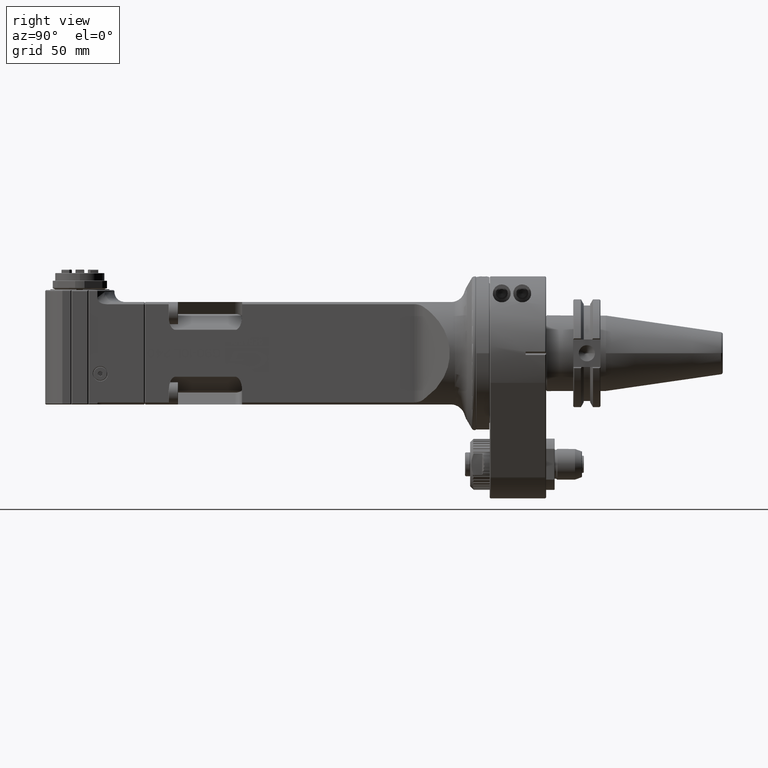
[diagram: clean part render]
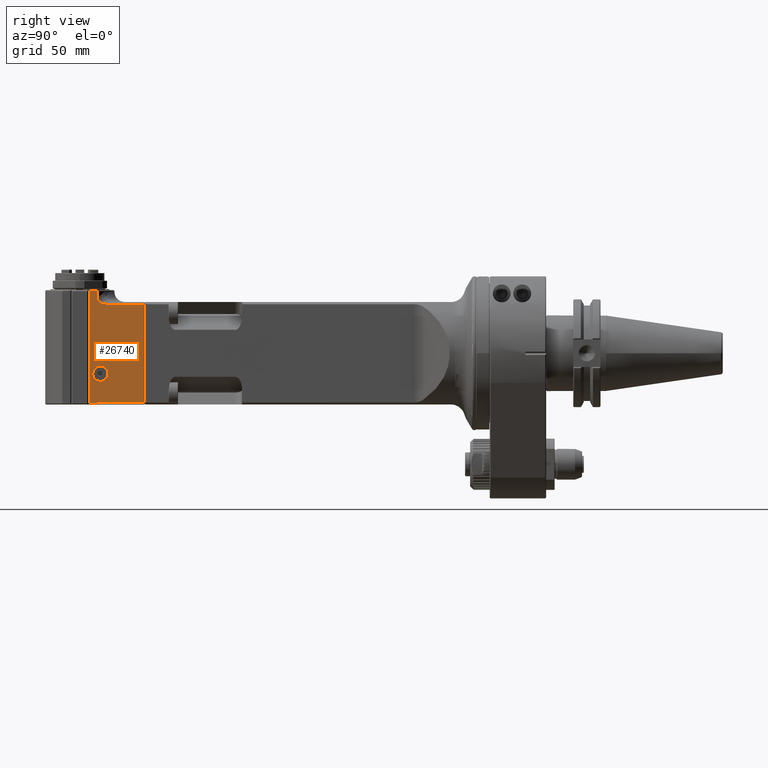
[diagram: same view with one face highlighted and labeled with its STEP entity id]
A machine part, right view. The second image highlights one B-rep face of the part: STEP entity #26740.
In plain terms, the highlighted planar face has unit normal (-1, -0, 0).
Its self-contained STEP definition (entity closure, byte-faithful):
#215=B_SPLINE_CURVE_WITH_KNOTS('',3,(#43781,#43782,#43783,#43784,#43785,
#43786,#43787,#43788,#43789,#43790,#43791,#43792,#43793,#43794,#43795,#43796,
#43797,#43798,#43799,#43800,#43801,#43802,#43803,#43804,#43805,#43806,#43807,
#43808,#43809,#43810,#43811,#43812,#43813,#43814,#43815,#43816,#43817,#43818,
#43819,#43820,#43821,#43822,#43823,#43824,#43825,#43826,#43827,#43828,#43829,
#43830,#43831,#43832,#43833,#43834,#43835,#43836,#43837,#43838,#43839,#43840,
#43841),.UNSPECIFIED.,.F.,.F.,(4,3,3,3,3,3,3,3,3,3,3,3,3,3,3,3,3,3,3,3,
4),(0.,0.05,0.1,0.15,0.2,0.25,0.3,0.35,0.4,0.45,0.5,0.55,0.6,0.65,0.7,0.75,
0.8,0.85,0.9,0.95,1.),.UNSPECIFIED.);
#216=B_SPLINE_CURVE_WITH_KNOTS('',3,(#43846,#43847,#43848,#43849,#43850,
#43851,#43852,#43853,#43854,#43855,#43856,#43857,#43858,#43859),
 .UNSPECIFIED.,.F.,.F.,(4,2,2,2,2,2,4),(-0.742381027768866,-0.591651031832932,
-0.438940957381916,-0.296437178782126,-0.162989862586026,-0.0810325667095564,
-9.59170449288393E-7),.UNSPECIFIED.);
#610=FACE_BOUND('',#4354,.T.);
#1535=CIRCLE('',#28914,4.44971597818395);
#2764=FACE_OUTER_BOUND('',#4353,.T.);
#4353=EDGE_LOOP('',(#20249,#20250,#20251,#20252,#20253,#20254,#20255,#20256,
#20257,#20258));
#4354=EDGE_LOOP('',(#20259));
#6238=LINE('',#43769,#8815);
#6239=LINE('',#43773,#8816);
#6240=LINE('',#43775,#8817);
#6241=LINE('',#43777,#8818);
#6242=LINE('',#43779,#8819);
#6243=LINE('',#43843,#8820);
#6244=LINE('',#43844,#8821);
#6245=LINE('',#43860,#8822);
#8815=VECTOR('',#33472,10.);
#8816=VECTOR('',#33475,10.);
#8817=VECTOR('',#33476,66.);
#8818=VECTOR('',#33477,4.75);
#8819=VECTOR('',#33478,0.117012143862399);
#8820=VECTOR('',#33479,26.34980151127);
#8821=VECTOR('',#33480,57.4456258484);
#8822=VECTOR('',#33481,10.);
#11484=VERTEX_POINT('',#42947);
#11592=VERTEX_POINT('',#43761);
#11593=VERTEX_POINT('',#43771);
#11594=VERTEX_POINT('',#43772);
#11595=VERTEX_POINT('',#43774);
#11596=VERTEX_POINT('',#43776);
#11597=VERTEX_POINT('',#43778);
#11598=VERTEX_POINT('',#43780);
#11599=VERTEX_POINT('',#43842);
#11600=VERTEX_POINT('',#43845);
#11601=VERTEX_POINT('',#43861);
#14748=EDGE_CURVE('',#11484,#11592,#6238,.T.);
#14749=EDGE_CURVE('',#11593,#11594,#6239,.T.);
#14750=EDGE_CURVE('',#11594,#11595,#6240,.T.);
#14751=EDGE_CURVE('',#11596,#11595,#6241,.T.);
#14752=EDGE_CURVE('',#11597,#11596,#6242,.T.);
#14753=EDGE_CURVE('',#11597,#11598,#215,.T.);
#14754=EDGE_CURVE('',#11599,#11598,#6243,.T.);
#14755=EDGE_CURVE('',#11599,#11484,#6244,.T.);
#14756=EDGE_CURVE('',#11592,#11600,#216,.T.);
#14757=EDGE_CURVE('',#11593,#11600,#6245,.T.);
#14758=EDGE_CURVE('',#11601,#11601,#1535,.T.);
#20249=ORIENTED_EDGE('',*,*,#14749,.T.);
#20250=ORIENTED_EDGE('',*,*,#14750,.T.);
#20251=ORIENTED_EDGE('',*,*,#14751,.F.);
#20252=ORIENTED_EDGE('',*,*,#14752,.F.);
#20253=ORIENTED_EDGE('',*,*,#14753,.T.);
#20254=ORIENTED_EDGE('',*,*,#14754,.F.);
#20255=ORIENTED_EDGE('',*,*,#14755,.T.);
#20256=ORIENTED_EDGE('',*,*,#14748,.T.);
#20257=ORIENTED_EDGE('',*,*,#14756,.T.);
#20258=ORIENTED_EDGE('',*,*,#14757,.F.);
#20259=ORIENTED_EDGE('',*,*,#14758,.T.);
#25530=PLANE('',#28913);
#26740=ADVANCED_FACE('',(#2764,#610),#25530,.F.);
#28913=AXIS2_PLACEMENT_3D('',#43770,#33473,#33474);
#28914=AXIS2_PLACEMENT_3D('',#43862,#33482,#33483);
#33472=DIRECTION('',(0.,1.,0.));
#33473=DIRECTION('center_axis',(0.,0.,1.));
#33474=DIRECTION('ref_axis',(0.,-1.,0.));
#33475=DIRECTION('',(0.,1.,0.));
#33476=DIRECTION('',(1.,0.,0.));
#33477=DIRECTION('',(0.,1.,0.));
#33478=DIRECTION('',(0.999999999998512,1.70440928605602E-6,2.65838460463703E-7));
#33479=DIRECTION('',(8.643817627317E-9,1.,-2.048489617218E-8));
#33480=DIRECTION('',(-1.,-1.404315488811E-9,1.407866432129E-9));
#33481=DIRECTION('',(1.,0.,0.));
#33482=DIRECTION('center_axis',(0.,0.,1.));
#33483=DIRECTION('ref_axis',(0.,-1.,0.));
#42947=CARTESIAN_POINT('',(-28.7228132316882,227.499999707388,-19.9999997356919));
#43761=CARTESIAN_POINT('',(-28.7228006652043,249.449632986943,-20.0000000333101));
#43769=CARTESIAN_POINT('',(-28.7228132326901,152.65,-20.));
#43770=CARTESIAN_POINT('Origin',(-50.,284.8639702343,-20.));
#43771=CARTESIAN_POINT('',(-36.4999857299539,254.750019458803,-20.0000064862213));
#43772=CARTESIAN_POINT('',(-36.5,259.5,-20.));
#43773=CARTESIAN_POINT('',(-36.5,271.0363974235,-20.));
#43774=CARTESIAN_POINT('',(29.5,259.5,-20.));
#43775=CARTESIAN_POINT('',(-36.5,259.5,-20.));
#43776=CARTESIAN_POINT('',(29.5,254.75,-20.));
#43777=CARTESIAN_POINT('',(29.5,254.75,-20.));
#43778=CARTESIAN_POINT('',(29.3829878568136,254.749999763802,-20.0000000801735));
#43779=CARTESIAN_POINT('',(29.38298785614,254.7499998006,-20.00000003111));
#43780=CARTESIAN_POINT('',(28.7228131237336,253.849800958901,-19.9999999517198));
#43781=CARTESIAN_POINT('Ctrl Pts',(29.38298785614,254.749999690207,-20.0000001783005));
#43782=CARTESIAN_POINT('Ctrl Pts',(29.3640805621191,254.749999694391,-20.0000001795457));
#43783=CARTESIAN_POINT('Ctrl Pts',(29.345687928396,254.749246364406,-19.9999999052709));
#43784=CARTESIAN_POINT('Ctrl Pts',(29.3278260698004,254.74780241109,-20.0000000000365));
#43785=CARTESIAN_POINT('Ctrl Pts',(29.3099642112048,254.746358457774,-20.000000094802));
#43786=CARTESIAN_POINT('Ctrl Pts',(29.2926330744017,254.744224447849,-19.999999763914));
#43787=CARTESIAN_POINT('Ctrl Pts',(29.2757857852293,254.741453920203,-20.0000000000678));
#43788=CARTESIAN_POINT('Ctrl Pts',(29.2589384960569,254.738683392558,-20.0000002362217));
#43789=CARTESIAN_POINT('Ctrl Pts',(29.2425750263125,254.735276732647,-20.0000005046312));
#43790=CARTESIAN_POINT('Ctrl Pts',(29.2266123537002,254.731257260226,-20.0000000000597));
#43791=CARTESIAN_POINT('Ctrl Pts',(29.2106496810878,254.727237787806,-19.9999994954881));
#43792=CARTESIAN_POINT('Ctrl Pts',(29.195087977391,254.722604731049,-19.9999993724448));
#43793=CARTESIAN_POINT('Ctrl Pts',(29.1799322526747,254.717391576474,-20.0000000000692));
#43794=CARTESIAN_POINT('Ctrl Pts',(29.1647765279583,254.712178421899,-20.0000006276937));
#43795=CARTESIAN_POINT('Ctrl Pts',(29.1500264587339,254.706386110139,-20.0000005168604));
#43796=CARTESIAN_POINT('Ctrl Pts',(29.1355853519834,254.699994276455,-20.0000000000781));
#43797=CARTESIAN_POINT('Ctrl Pts',(29.1211442452328,254.693602442771,-19.9999994832958));
#43798=CARTESIAN_POINT('Ctrl Pts',(29.1070124921586,254.686610280151,-19.9999999193073));
#43799=CARTESIAN_POINT('Ctrl Pts',(29.0931972833803,254.679019466981,-20.0000000000902));
#43800=CARTESIAN_POINT('Ctrl Pts',(29.0793820746021,254.671428653812,-20.0000000808731));
#43801=CARTESIAN_POINT('Ctrl Pts',(29.065883293437,254.663239292838,-19.9999995860143));
#43802=CARTESIAN_POINT('Ctrl Pts',(29.052693784903,254.654444712764,-20.0000000001226));
#43803=CARTESIAN_POINT('Ctrl Pts',(29.039504276369,254.64565013269,-20.0000004142309));
#43804=CARTESIAN_POINT('Ctrl Pts',(29.0266236774154,254.636250953006,-20.0000006497387));
#43805=CARTESIAN_POINT('Ctrl Pts',(29.0139893391457,254.626173564261,-20.0000000001671));
#43806=CARTESIAN_POINT('Ctrl Pts',(29.001355000876,254.616096175517,-19.9999993505955));
#43807=CARTESIAN_POINT('Ctrl Pts',(28.9889675552737,254.60533976293,-19.9999993552891));
#43808=CARTESIAN_POINT('Ctrl Pts',(28.9768659028881,254.59389272337,-20.0000000002615));
#43809=CARTESIAN_POINT('Ctrl Pts',(28.9647642505026,254.582445683809,-20.0000006452339));
#43810=CARTESIAN_POINT('Ctrl Pts',(28.9529476322628,254.570308795976,-20.0000003505584));
#43811=CARTESIAN_POINT('Ctrl Pts',(28.9413776940187,254.557376784765,-20.0000000004293));
#43812=CARTESIAN_POINT('Ctrl Pts',(28.9298077557747,254.544444773554,-19.9999996503002));
#43813=CARTESIAN_POINT('Ctrl Pts',(28.9184848821785,254.530717337621,-19.9999999196325));
#43814=CARTESIAN_POINT('Ctrl Pts',(28.907427712214,254.516107362667,-20.00000000068));
#43815=CARTESIAN_POINT('Ctrl Pts',(28.8963705422496,254.501497387713,-20.0000000817275));
#43816=CARTESIAN_POINT('Ctrl Pts',(28.8855792976148,254.486004707697,-20.0000003530542));
#43817=CARTESIAN_POINT('Ctrl Pts',(28.875103051249,254.469558170547,-20.0000000010673));
#43818=CARTESIAN_POINT('Ctrl Pts',(28.8646268048832,254.453111633396,-19.9999996490804));
#43819=CARTESIAN_POINT('Ctrl Pts',(28.8544660821427,254.435710874968,-19.999999531407));
#43820=CARTESIAN_POINT('Ctrl Pts',(28.8447065962702,254.417345964853,-20.0000000015866));
#43821=CARTESIAN_POINT('Ctrl Pts',(28.8349471103977,254.398981054738,-20.0000004717661));
#43822=CARTESIAN_POINT('Ctrl Pts',(28.8255877176962,254.379652573012,-19.9999999505563));
#43823=CARTESIAN_POINT('Ctrl Pts',(28.8166633502085,254.359239697628,-20.000000002219));
#43824=CARTESIAN_POINT('Ctrl Pts',(28.8077389827208,254.338826822244,-20.0000000538818));
#43825=CARTESIAN_POINT('Ctrl Pts',(28.799249410967,254.317329707317,-20.0000003104495));
#43826=CARTESIAN_POINT('Ctrl Pts',(28.7912493725801,254.294584968827,-20.0000000029009));
#43827=CARTESIAN_POINT('Ctrl Pts',(28.7832493341932,254.271840230337,-19.9999996953524));
#43828=CARTESIAN_POINT('Ctrl Pts',(28.7757399239284,254.247847493155,-20.0000000913297));
#43829=CARTESIAN_POINT('Ctrl Pts',(28.7688326903488,254.222538471325,-20.0000000034711));
#43830=CARTESIAN_POINT('Ctrl Pts',(28.7619254567692,254.197229449495,-19.9999999156126));
#43831=CARTESIAN_POINT('Ctrl Pts',(28.7556204114902,254.170604076303,-19.9999994422419));
#43832=CARTESIAN_POINT('Ctrl Pts',(28.7500367689387,254.142609921171,-20.0000000036865));
#43833=CARTESIAN_POINT('Ctrl Pts',(28.7444531263872,254.114615766039,-20.000000565131));
#43834=CARTESIAN_POINT('Ctrl Pts',(28.7395892462803,254.08525319207,-20.000000531487));
#43835=CARTESIAN_POINT('Ctrl Pts',(28.735563370224,254.054331614081,-20.0000000032501));
#43836=CARTESIAN_POINT('Ctrl Pts',(28.7315374941677,254.023410036092,-19.9999994750131));
#43837=CARTESIAN_POINT('Ctrl Pts',(28.7283514484132,253.990929255224,-19.9999999898277));
#43838=CARTESIAN_POINT('Ctrl Pts',(28.7261702330177,253.956845768704,-20.0000000019812));
#43839=CARTESIAN_POINT('Ctrl Pts',(28.7239890176222,253.922762282185,-20.0000000141346));
#43840=CARTESIAN_POINT('Ctrl Pts',(28.7228130812058,253.887076017854,-19.9999999326984));
#43841=CARTESIAN_POINT('Ctrl Pts',(28.7228130991243,253.849800958901,-19.9999999345827));
#43842=CARTESIAN_POINT('',(28.7228131438454,227.499999777497,-19.9999996350185));
#43843=CARTESIAN_POINT('',(28.72281294519,227.4999994476,-19.99999944622));
#43844=CARTESIAN_POINT('',(28.72281294519,227.4999994476,-19.99999944622));
#43845=CARTESIAN_POINT('',(-32.6490389639455,254.749997970184,-19.9999999627179));
#43846=CARTESIAN_POINT('Ctrl Pts',(-28.7227881760535,249.449632986777,-20.));
#43847=CARTESIAN_POINT('Ctrl Pts',(-28.7227814842853,249.953489601505,-20.));
#43848=CARTESIAN_POINT('Ctrl Pts',(-28.7604922336968,250.46200417765,-20.));
#43849=CARTESIAN_POINT('Ctrl Pts',(-28.9316320429823,251.460666698147,-20.));
#43850=CARTESIAN_POINT('Ctrl Pts',(-29.0682251836555,251.961231733459,-20.));
#43851=CARTESIAN_POINT('Ctrl Pts',(-29.4580476946885,252.865159749393,-20.));
#43852=CARTESIAN_POINT('Ctrl Pts',(-29.704734946582,253.276826212944,-20.));
#43853=CARTESIAN_POINT('Ctrl Pts',(-30.3202070625698,253.959966122777,-20.));
#43854=CARTESIAN_POINT('Ctrl Pts',(-30.6694307422449,254.226582236812,-20.));
#43855=CARTESIAN_POINT('Ctrl Pts',(-31.3184460764803,254.533423442454,-20.));
#43856=CARTESIAN_POINT('Ctrl Pts',(-31.5771628855168,254.617466423398,-19.9999999999982));
#43857=CARTESIAN_POINT('Ctrl Pts',(-32.1095098730298,254.725827468136,-19.9999999999982));
#43858=CARTESIAN_POINT('Ctrl Pts',(-32.378933256492,254.749997921539,-20.));
#43859=CARTESIAN_POINT('Ctrl Pts',(-32.6490389639296,254.749995874742,-20.));
#43860=CARTESIAN_POINT('',(-40.,254.75,-20.));
#43861=CARTESIAN_POINT('',(12.,257.449715978184,-20.));
#43862=CARTESIAN_POINT('Origin',(12.,253.,-20.));